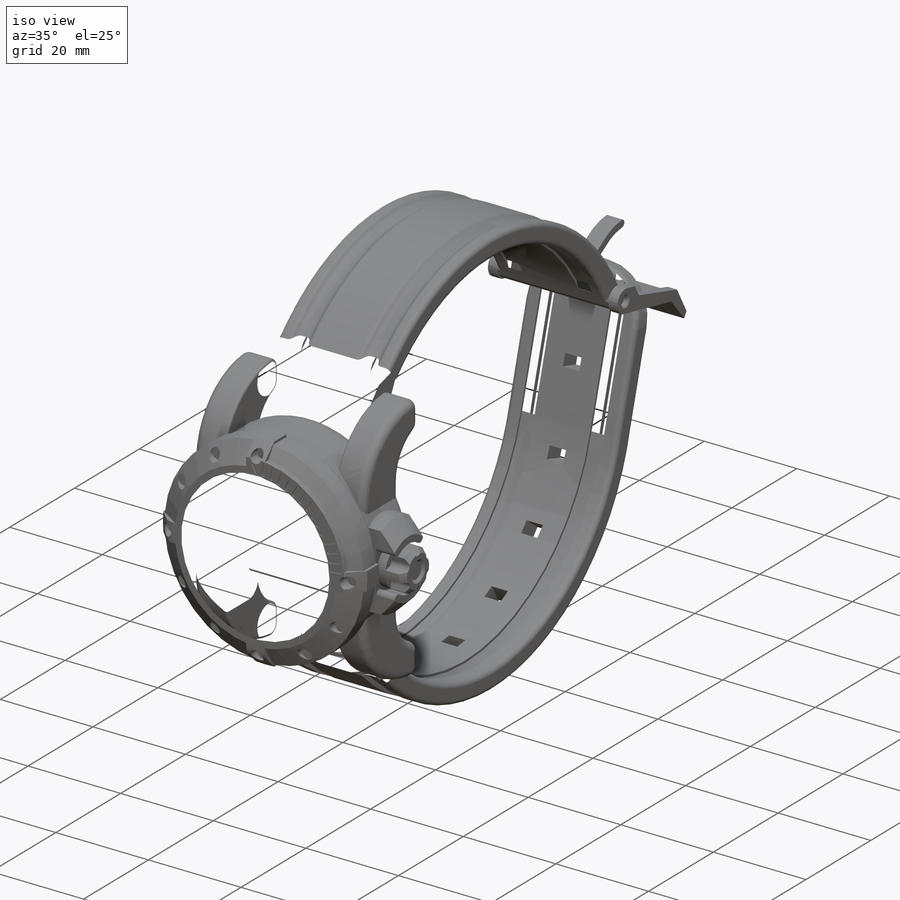
[diagram: iso view]
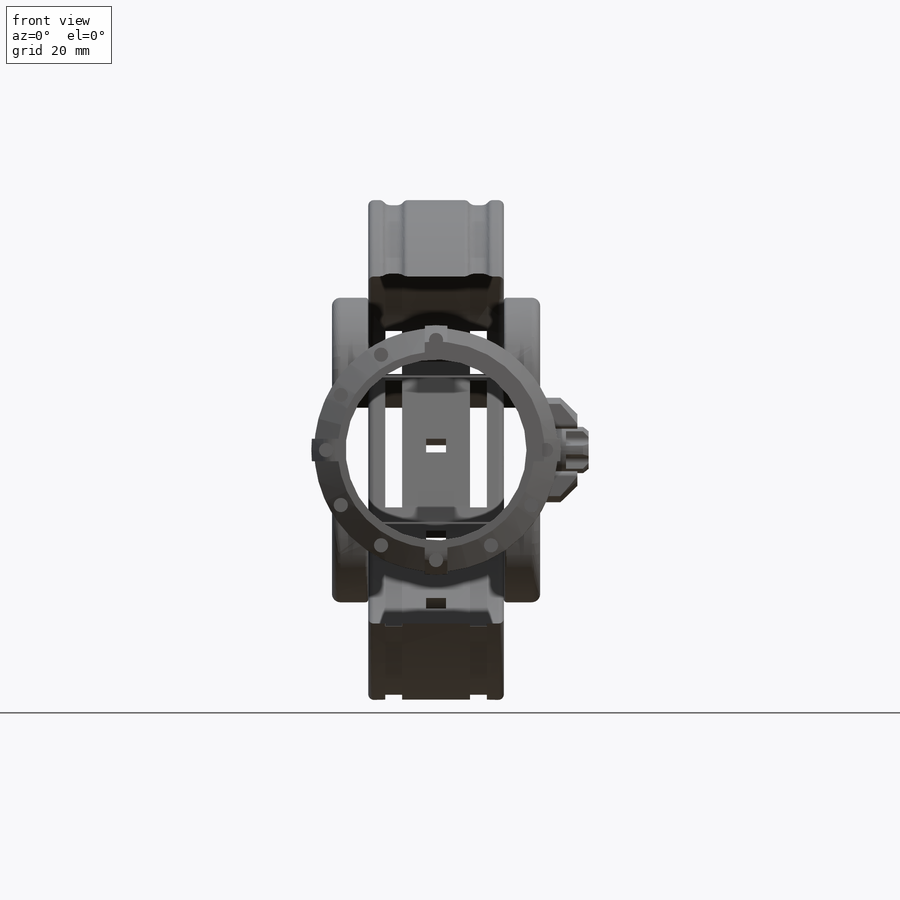
[diagram: front view]
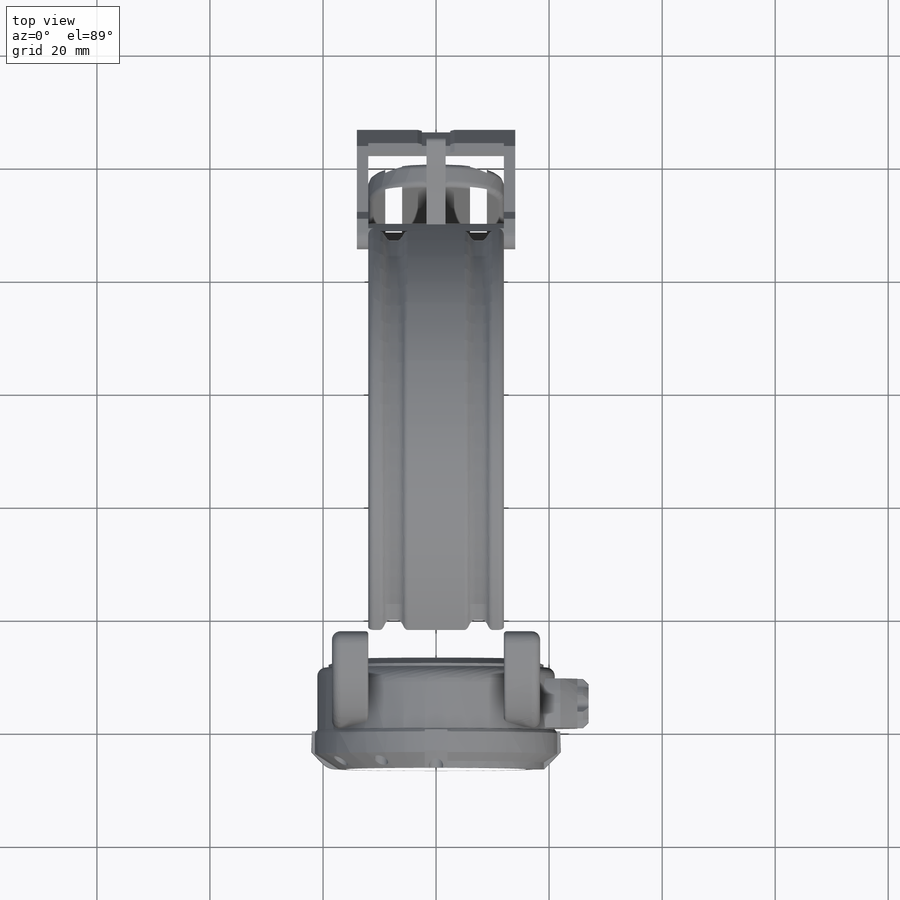
[diagram: top view]
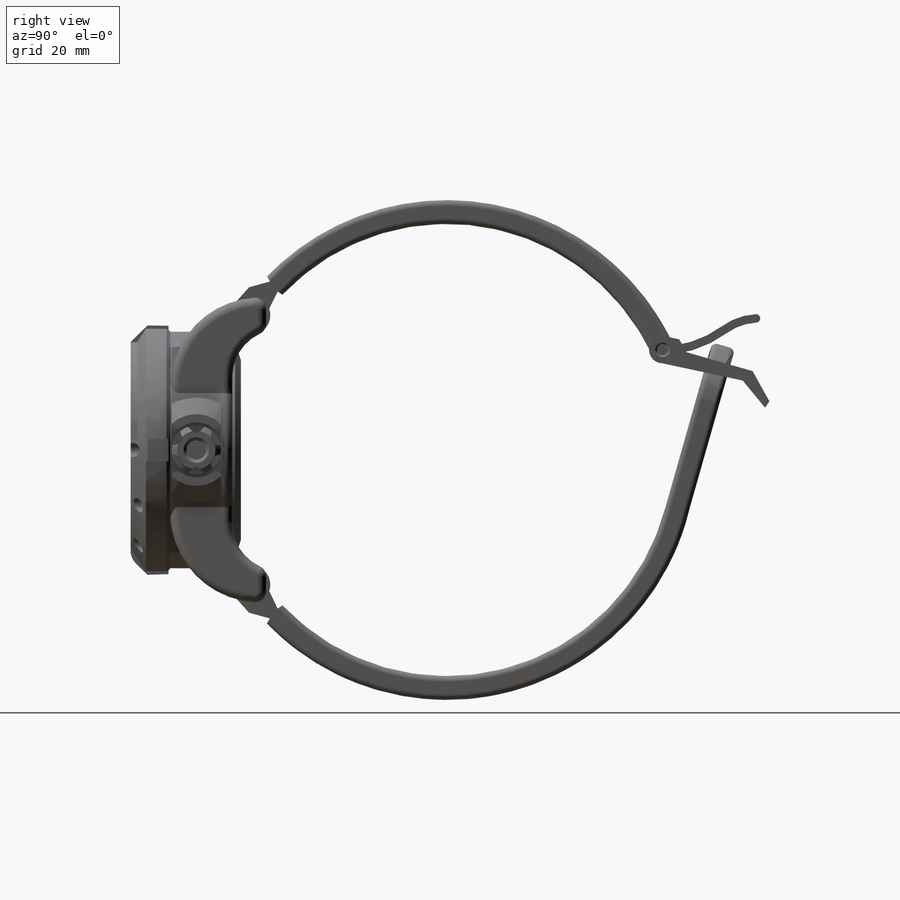
[diagram: right view]
SOLIDWORKS PART (.sldprt)
format: sldprt  version: not decoded by parser v0  size: 2,647,040 bytes
history: native  units: mm
features: sketch x48, cut_extrude x25, extrude x22, fillet x18, chamfer x7, pattern_circular x6, plane x4, mirror x3, material x1 (+16 scaffold rows collapsed)
feature tree (150):
  scaffold x16  (default folders/planes/origin — collapsed)
  material  "Material <not specified>"
  sketch  "Sketch1"  dims[D1=42.0mm]
  extrude  "Boss-Extrude1"  Depth=11mm
  plane  "Plane1"  Offset=21mm
  sketch  "Sketch5"  dims[c1.D1=12.0mm c1.D2=~18.422123mm c1.D3=~18.422123mm c2.D2=~18.422123mm c2.D3=~26.98925mm c2.D4=~26.98925mm c3.D3=~26.98925mm]
  extrude  "Boss-Extrude3"  Depth=17mm
  sketch  "Sketch7"  dims[c1.D1=~23.549792mm c1.D2=~8.399379mm c1.D3=~19.397759mm c1.D4=~19.909272mm c1.D5=~4.675154mm c1.D6=~31.638956mm c1.D7=~31.638956mm c2.D6=~31.638956mm]
  cut_extrude  "Cut-Extrude3"  Depth=47mm
  fillet  "Fillet1"  Radius=16mm
  fillet  "Fillet2"  Radius=16mm
  sketch  "Sketch8"
  extrude  "Boss-Extrude4"  Depth=1mm
  sketch  "Sketch9"
  extrude  "Boss-Extrude5"  Depth=6mm
  sketch  "Sketch10"  dims[D1=32.0mm]
  cut_extrude  "Cut-Extrude4"  Depth=4mm
  fillet  "Fillet3"  Radius=2mm
  sketch  "Sketch11"  dims[D1=38.0mm]
  extrude  "Boss-Extrude6"  Depth=0.5mm
  sketch  "Sketch12"
  extrude  "Boss-Extrude7"  Depth=1mm
  fillet  "Fillet4"  Radius=1.5mm
  fillet  "Fillet5"  Radius=0.5mm
  fillet  "Fillet9"  Radius=3mm
  chamfer  "Chamfer1"  Distance=3mm Angle=57deg
  sketch  "Sketch13"  dims[D1=~43.078854mm D2=51.1951mm]
  cut_extrude  "Cut-Extrude5"  Depth=6.7mm
  fillet  "Fillet10"  Radius=3mm
  fillet  "Fillet11"  Radius=1.5mm
  sketch  "Sketch14"  dims[D2=~22.067503mm D1=2.0mm D3=~15.917095mm D4=~16.840461mm]
  extrude  "Boss-Extrude8"  Depth=6.7mm
  pattern_circular  "CirPattern3"  Count=12 Angle=360deg
  chamfer  "Chamfer4"  Distance=3mm Angle=44deg
  fillet  "Fillet17"  Radius=3mm
  sketch  "Sketch17"  dims[c1.D2=2.5mm c1.D1=~19.170437mm c2.D1=30.0deg c3.D1=~14.852782mm]
  cut_extrude  "Cut-Extrude7"  Depth=2.3mm
  sketch  "Sketch23"  dims[c1.D1=39.0mm c1.D2=16.0mm c2.D1=16.0mm c2.D3=~4.30156mm c2.D4=~4.805026mm c2.D5=~17.867412mm c2.D6=~21.338409mm c3.D3=~4.30156mm c3.D4=~17.842189mm c3.D5=~21.307668mm c4.D4=~17.842189mm]
  extrude  "Boss-Extrude9"  Depth=4mm
  sketch  "Sketch24"  dims[c1.D2=~16.173218mm c1.D3=~19.018189mm c1.D5=0.7mm c1.D6=0.7mm c1.D1=0.7mm c2.D2=0.7mm c2.D1=~19.459916mm c3.D1=30.0deg c3.D4=~9.806335mm c3.D5=~10.363682mm c3.D6=~11.22906mm c3.D7=~11.786407mm c4.D4=~9.806335mm c4.D1=~10.363682mm c4.D5=~11.22906mm c4.D6=~11.786407mm c5.D1=~0.295925mm c6.D1=90.0deg c6.D2=0.7mm c7.D2=90.0deg c8.D2=~0.187667mm c9.D2=90.0deg c9.D1=~2.134903mm c10.D2=~2.134903mm c10.D1=~18.668189mm c11.D2=~9.963534mm c11.D3=~10.266643mm c11.D4=~10.569752mm c11.D7=~11.030985mm c11.D8=~11.334094mm c11.D9=~11.637203mm c12.D2=~16.143245mm c12.D3=~16.318245mm c12.D4=~16.493245mm c12.D7=~17.992126mm c12.D8=~18.167126mm c12.D9=~18.342126mm c13.D2=~18.342126mm c13.D1=~22.067503mm c14.D1=30.0deg]
  cut_extrude  "Cut-Extrude9"  Depth=0.2mm
  pattern_circular  "CirPattern9"  Count=60 Angle=360deg
  pattern_circular  "CirPattern10"  Count=12 Angle=30deg
  sketch  "Sketch27"  dims[D1=~4.889789mm D2=~0.259463mm D3=~4.610211mm]
  extrude  "Boss-Extrude10"  Depth=2mm
  sketch  "Sketch28"  dims[D1=18.5mm]
  extrude  "Boss-Extrude11"  Depth=5mm
  sketch  "Sketch29"  dims[D1=8.7mm]
  extrude  "Boss-Extrude12"  Depth=5mm
  chamfer  "Chamfer5"  Distance=1mm Angle=44deg
  sketch  "Sketch30"  dims[c1.D1=~4.726823mm c1.D4=1.0mm c1.D2=~1.24301mm c1.D3=~1.24301mm c2.D2=~1.24301mm c2.D3=~1.753738mm c2.D4=~1.753738mm c3.D3=~1.753738mm]
  cut_extrude  "Cut-Extrude11"  Depth=4mm
  pattern_circular  "CirPattern13"  Count=6 Angle=360deg
  sketch  "Sketch31"  dims[D1=4.5mm]
  cut_extrude  "Cut-Extrude12"  Depth=0.5mm
  chamfer  "Chamfer6"  Distance=3mm Angle=44deg
  sketch  "Sketch32"  dims[D1=1.0mm D2=~10.717062mm D3=~1.911035mm D4=~3.86066mm D5=~14.653943mm D6=~9.584229mm D7=~2.46055mm D8=~2.569908mm D9=~14.301563mm]
  sketch  "Sketch33"  dims[D1=1.2mm D2=1.2mm D3=5.5mm D4=~2.198277mm D5=~2.538351mm]
  cut_extrude  "Cut-Extrude13"  Depth=0.5mm
  cut_extrude  "Cut-Extrude14"  Depth=0.5mm
  pattern_circular  "CirPattern15"  Count=12 Angle=360deg
  fillet  "Fillet18"  Radius=0.9mm
  sketch  "Sketch35"  dims[D1=8.0609mm]
  cut_extrude  "Cut-Extrude15"  Depth=0.0001mm
  sketch  "Sketch37"
  cut_extrude  "Cut-Extrude16"  Depth=28mm
  sketch  "Sketch38"  dims[c1.D1=4.2mm c1.D2=2.1mm c1.D4=~43.719751mm c1.D5=~47.919751mm c2.D2=2.1mm c2.D4=~43.719751mm c2.D5=~47.919751mm c3.D2=~47.919751mm c3.D4=~43.719751mm c3.D5=~47.919751mm c4.D4=~47.919751mm c4.D1=2.1mm c4.D2=~43.719751mm c4.D3=~47.919751mm c5.D1=2.1mm c5.D2=~43.719751mm c6.D1=2.1mm c6.D2=~40.011442mm c6.D3=~44.211442mm c7.D1=2.1mm c7.D2=~12.428762mm c7.D4=~14.222146mm c7.D5=~16.015529mm c7.D6=~53.351855mm c8.D2=~22.746766mm c8.D4=~23.839366mm c8.D5=~24.931966mm c8.D6=~22.746766mm c8.D7=~23.839366mm c8.D8=~24.931966mm c9.D2=~12.428762mm c9.D4=~14.222146mm c9.D5=~16.015529mm c9.D6=~53.351855mm c10.D2=~22.746766mm c10.D4=~23.839366mm c10.D5=~24.931966mm c10.D6=~22.746766mm c10.D7=~23.839366mm c10.D8=~24.931966mm c11.D2=~45.493532mm c11.D4=~12.428762mm c11.D3=~12.428762mm c12.D4=~14.222146mm c12.D5=~16.015529mm c12.D6=~53.351855mm c12.D3=~12.428762mm c13.D4=~14.222146mm c13.D3=~12.491042mm c14.D4=~14.222146mm c14.D5=~15.95325mm c14.D6=~48.936093mm c14.D3=~12.491042mm c15.D4=~14.222146mm c15.D2=2.1mm c15.D3=4.2mm c16.D2=2.1mm c16.D3=4.2mm]
  extrude  "Boss-Extrude15"  Depth=24mm
  sketch  "Sketch39"  dims[c1.D1=~1.734795mm c1.D2=~1.040604mm c1.D3=~2.959396mm c2.D2=~1.040604mm c2.D3=~18.225005mm]
  cut_extrude  "Cut-Extrude17"  Depth=0.25mm
  sketch  "Sketch41"  dims[D1=~62.863715mm D2=~93.636243mm D3=~16.565368mm D4=~38.314373mm]
  cut_extrude  "Cut-Extrude18"  Depth=40.5mm
  sketch  "Sketch42"  dims[c1.D2=~76.855966mm c1.D3=~78.243257mm c1.D4=~82.284654mm c2.D2=~76.855966mm c2.D3=~78.243257mm c2.D1=~74.809812mm c3.D2=~80.990737mm c3.D3=~85.032133mm c3.D4=~27.758482mm c3.D5=~28.901773mm c3.D6=~0.976884mm c4.D4=~27.758482mm c4.D5=~0.976884mm c4.D1=4.2mm]
  extrude  "Boss-Extrude17"  Depth=24mm
  sketch  "Sketch44"  dims[c1.D1=~2.104342mm c1.D2=~67.731953mm c1.D3=~68.664867mm c1.D4=~70.626203mm c1.D5=~70.88746mm c1.D6=~72.587538mm c1.D7=~72.622989mm c1.D8=~74.576868mm c1.D9=~75.541833mm c1.D10=~76.725148mm c2.D2=~67.731953mm c2.D3=~68.664867mm c2.D4=~70.626203mm c2.D5=~70.88746mm c2.D6=~72.622989mm c2.D7=~74.576868mm c2.D8=~75.541833mm c2.D9=~76.725148mm c2.D10=~2.423146mm c2.D11=~3.172578mm c2.D12=~6.368145mm c2.D13=~6.722524mm c2.D14=~1.915677mm c2.D15=~2.270671mm c3.D10=~2.423146mm c3.D11=~3.172578mm c3.D12=~6.368145mm]
  cut_extrude  "Cut-Extrude20"  Depth=24mm
  fillet  "Fillet21"  Radius=10mm
  sketch  "Sketch45"  dims[D1=2.0mm]
  cut_extrude  "Cut-Extrude21"  Depth=34mm
  sketch  "Sketch46"  dims[c1.D1=~2.414397mm c1.D2=~71.14075mm c1.D3=~73.579769mm c1.D4=~74.836324mm c1.D5=~84.785086mm c1.D6=~86.551196mm c1.D7=~88.767378mm c1.D8=~89.515043mm c1.D9=~0.572389mm c1.D10=~2.774718mm c1.D11=~4.446011mm c1.D12=~8.109641mm c1.D13=~9.261806mm c2.D9=~0.572389mm c2.D10=~2.774718mm c2.D11=~4.446011mm c2.D12=~9.261806mm]
  extrude  "Boss-Extrude18"  Depth=2mm
  mirror  "Mirror1"
  sketch  "Sketch48"  dims[D1=~14.961882mm D2=~16.460055mm D3=~6.675983mm]
  extrude  "Boss-Extrude19"  Depth=27mm
  sketch  "Sketch49"  dims[c1.D1=2.0mm c1.D3=~20.010227mm c1.D4=~9.59137mm c1.D5=~11.09137mm c1.D6=~18.510227mm c2.D3=~20.010227mm c2.D4=~9.59137mm c2.D5=~86.654003mm c2.D6=~87.305912mm c2.D7=~87.510475mm c2.D8=~88.891124mm c2.D9=~97.615193mm c2.D10=~98.503447mm c2.D11=~103.606469mm c2.D12=~103.645465mm c2.D13=~103.684461mm c2.D14=~104.183162mm c3.D5=~86.654003mm c3.D6=~87.305912mm c3.D7=~87.510475mm c3.D8=~97.615193mm c3.D9=~103.606469mm c3.D2=1.5mm]
  extrude  "Boss-Extrude20"  Depth=3.4mm
  sketch  "Sketch50"  dims[D1=2.0mm]
  cut_extrude  "Cut-Extrude22"  Depth=1mm
  chamfer  "Chamfer7"  Distance=0.3mm Angle=44deg
  mirror  "Mirror4"
  chamfer  "Chamfer8"  Distance=0.3mm Angle=44deg
  fillet  "Fillet22"  Radius=1mm
  fillet  "Fillet23"  Radius=1mm
  fillet  "Fillet24"  Radius=1mm
  sketch  "Sketch51"
  plane  "Plane2"  Offset=65mm
  plane  "Plane3"
  sketch  "Sketch53"  dims[c1.D1=2.0mm c1.D3=2.0mm c1.D2=~45.001348mm c2.D1=~1.556707mm c2.D2=~1.556707mm c3.D1=~1.556707mm c3.D2=~36.695157mm c3.D3=~37.783932mm c3.D4=~38.872707mm c4.D2=~36.695157mm c4.D3=~37.783932mm c4.D4=3.5mm c4.D5=2.5mm]
  cut_extrude  "Cut-Extrude24"  Depth=21mm
  pattern_circular  "CirPattern16"  Count=18 Angle=360deg
  sketch  "Sketch54"  dims[D1=3.5mm D2=2.5mm]
  cut_extrude  "Cut-Extrude25"  Depth=21mm
  sketch  "Sketch55"  dims[D1=5.0mm D2=7.0mm]
  cut_extrude  "Cut-Extrude26"  Depth=0.7mm
  sketch  "Sketch56"  dims[c1.D1=11.5mm c1.D2=16.5mm c2.D1=11.5mm c2.D2=~1.23847mm c2.D3=~3.820129mm c2.D4=~8.878728mm c3.D2=~1.23847mm c3.D3=~3.820129mm]
  cut_extrude  "Cut-Extrude27"  Depth=0.7mm
  chamfer  "Chamfer9"  Distance=0.3mm Angle=69deg
  plane  "Plane4"  Offset=9mm
  sketch  "Sketch57"  dims[c1.D1=81.0mm c1.D2=~86.61568mm c1.D3=~37.43549mm c1.D4=~47.069867mm c1.D5=~8.75842mm c1.D6=~8.120499mm c1.D7=~8.22651mm c1.D8=~10.10924mm c1.D9=~4.356282mm c1.D10=~11.026363mm c1.D11=~6.437085mm c1.D12=~73.377994mm c1.D13=~10.350827mm c1.D14=~10.555776mm c1.D15=~11.22263mm c1.D16=~11.932961mm c1.D17=~16.15119mm c1.D18=~16.466167mm c1.D19=~17.974703mm c1.D20=~18.235023mm c1.D21=~18.960686mm c1.D22=~23.575147mm c1.D23=~25.865505mm c1.D24=~27.922698mm c1.D25=~73.033809mm c1.D26=~83.530396mm c1.D27=~85.765184mm c1.D28=~86.122848mm c1.D29=~88.141902mm c1.D30=~89.392622mm c1.D31=~89.742857mm c1.D32=~91.040299mm c1.D33=~91.444882mm c1.D34=~94.144105mm c1.D35=~96.509639mm c1.D36=~97.869236mm c1.D37=~102.761408mm c1.D38=~104.060737mm c1.D39=~110.442298mm c2.D13=~10.350827mm c2.D14=~10.555776mm c2.D15=~11.22263mm c2.D16=~11.932961mm c2.D17=~17.974703mm c2.D18=~18.235023mm c2.D19=~18.960686mm c2.D20=~23.575147mm c2.D21=~73.033809mm c2.D22=~86.122848mm c2.D23=~88.141902mm c2.D24=~89.742857mm c2.D25=~91.444882mm c2.D26=~94.144105mm c2.D28=~99.145366mm c2.D29=~100.794276mm]
  cut_extrude  "Cut-Extrude28"  Depth=3mm
  mirror  "Mirror6"
  fillet  "Fillet25"  Radius=1mm
  fillet  "Fillet26"  Radius=1.5mm
  sketch  "Sketch58"  dims[c1.D1=2.5mm c1.D2=1.5mm c1.D3=~0.882645mm c1.D4=~5.777147mm c1.D5=~6.239259mm c1.D6=~6.768846mm c1.D7=~0.770187mm c2.D3=~0.882645mm c2.D4=~5.777147mm]
  extrude  "Boss-Extrude21"  Depth=0.6mm
  sketch  "Sketch59"  dims[D1=~0.857466mm D2=~0.432024mm]
  cut_extrude  "Cut-Extrude30"  Depth=0.2mm
  sketch  "Sketch60"  dims[c1.D1=~1.063283mm c1.D2=~0.650961mm c1.D3=~1.555113mm c1.D4=~0.060067mm c1.D5=~6.922034mm c1.D6=~7.40258mm c1.D7=~7.910876mm c2.D3=~1.555113mm c2.D4=~0.060067mm]
  extrude  "Boss-Extrude22"  Depth=0.4mm
  sketch  "Sketch61"  dims[c1.D1=~0.405275mm c1.D2=~0.679032mm c1.D3=~2.061947mm c1.D4=~2.577966mm c1.D5=~3.093984mm c1.D6=~8.657171mm c1.D7=~9.272895mm c2.D3=~2.061947mm c2.D4=~2.577966mm]
  cut_extrude  "Cut-Extrude31"  Depth=0.2mm
  sketch  "Sketch62"  dims[c1.D1=~0.537191mm c1.D2=~0.291746mm c1.D3=~0.20751mm c1.D4=~0.136363mm c1.D5=~0.256637mm c1.D6=~0.436371mm c1.D7=~0.31964mm c1.D8=~0.432556mm c1.D9=~1.096286mm c1.D10=~1.221962mm c1.D11=~2.468003mm c1.D12=~2.925169mm c1.D13=~8.861876mm c1.D14=~9.077367mm c1.D15=~9.293571mm c2.D4=~0.136363mm c2.D5=~0.256637mm c2.D6=~0.432556mm c2.D7=~1.221962mm c2.D8=~2.468003mm c2.D9=~2.925169mm c2.D10=~8.861876mm c2.D11=~9.077367mm]
  extrude  "Boss-Extrude23"  Depth=0.3mm
  sketch  "Sketch63"  dims[c1.D1=~0.21086mm c1.D2=~0.207471mm c1.D3=~3.026611mm c1.D4=~3.180158mm c1.D5=~3.333604mm c1.D6=~9.357683mm c1.D7=~9.669691mm c2.D3=~3.026611mm c2.D4=~3.180158mm]
  cut_extrude  "Cut-Extrude32"  Depth=0.1mm
  sketch  "Sketch64"  dims[D1=~0.708409mm]
  extrude  "Boss-Extrude24"  Depth=0.1mm
  sketch  "Sketch65"
  cut_extrude  "Cut-Extrude33"  Depth=1.2mm
  sketch  "Sketch66"
  extrude  "Boss-Extrude25"  Depth=1.2mm
  sketch  "Sketch67"  dims[c1.D1=7.0mm c1.D2=~11.613205mm c1.D3=~15.189163mm c1.D4=~17.546615mm c1.D5=~19.984973mm c1.D6=~21.175844mm c1.D7=~31.482872mm c1.D8=~31.482872mm c2.D7=~31.482872mm]
  extrude  "Boss-Extrude26"  Depth=24mm
  fillet  "Fillet27"  Radius=1mm
  fillet  "Fillet28"  Radius=1mm
decode coverage: 119 of 129 modeling features carry decoded parameters
note: ~ marks probable driven/reference dimensions
note: suppression state not decoded; provenance and decode notes live in map.json
